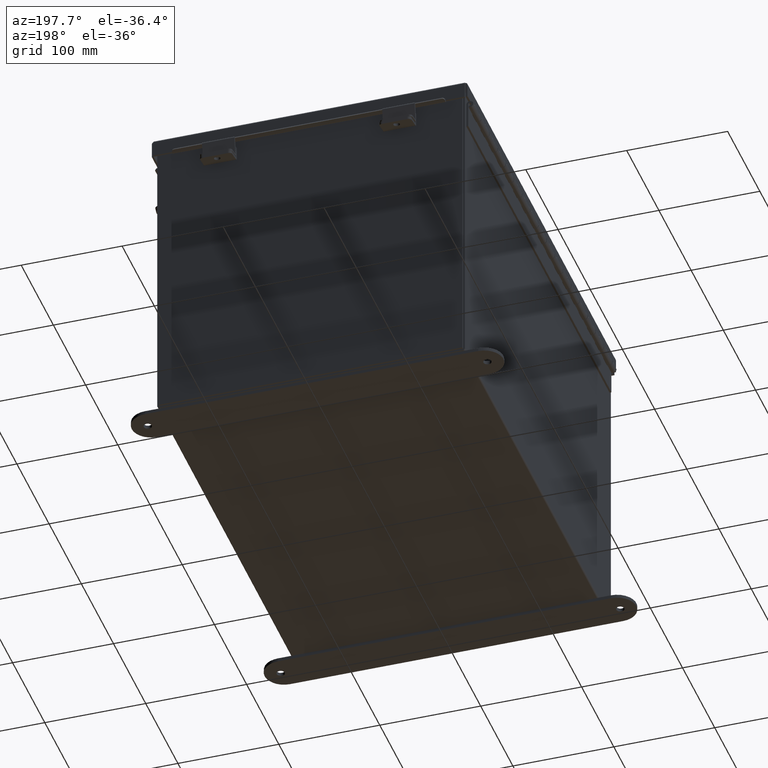
[diagram: clean part render]
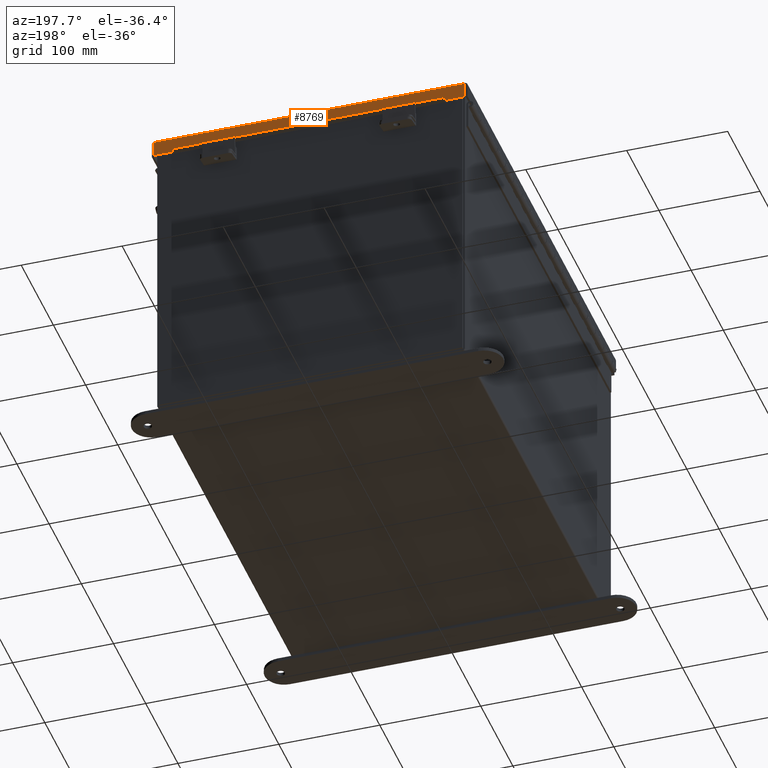
[diagram: same view with one face highlighted and labeled with its STEP entity id]
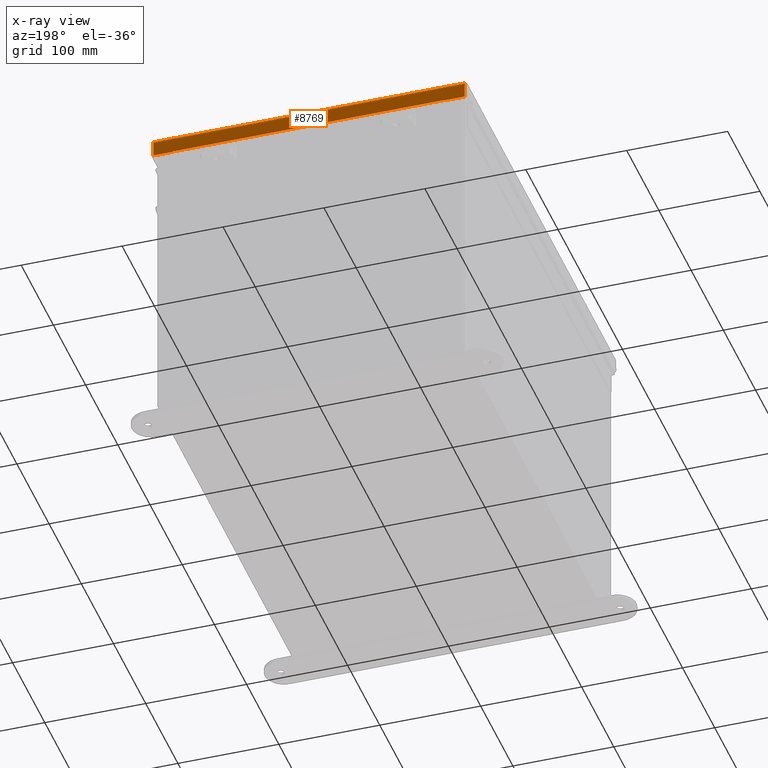
[diagram: x-ray of the same camera — body ghosted, the highlighted face saturated]
A machine part, auxiliary view. The second image highlights one B-rep face of the part: STEP entity #8769.
The next image is the same camera in x-ray: the body ghosted, the highlighted face saturated — about 0% of this face is hidden behind the body in this view.
In plain terms, the highlighted planar face has unit normal (-0, -1, -0).
Its self-contained STEP definition (entity closure, byte-faithful):
#236 = PLANE ( 'NONE',  #9175 ) ;
#522 = LINE ( 'NONE', #18403, #15509 ) ;
#984 = LINE ( 'NONE', #8507, #16458 ) ;
#1110 = ORIENTED_EDGE ( 'NONE', *, *, #16737, .F. ) ;
#1337 = ORIENTED_EDGE ( 'NONE', *, *, #6985, .F. ) ;
#1694 = VECTOR ( 'NONE', #11295, 39.37007874015748100 ) ;
#1746 = DIRECTION ( 'NONE',  ( 2.836592343583501600E-029, -1.000000000000000000, 3.569293475308533200E-015 ) ) ;
#2016 = EDGE_CURVE ( 'NONE', #3080, #7812, #15405, .T. ) ;
#2787 = CARTESIAN_POINT ( 'NONE',  ( -6.074478932188137400, 9.156249999999989300, 0.01300000000000010700 ) ) ;
#3080 = VERTEX_POINT ( 'NONE', #5813 ) ;
#3775 = CARTESIAN_POINT ( 'NONE',  ( 6.074478932188135600, 9.156249999999992900, 0.6123000000000005100 ) ) ;
#3823 = CARTESIAN_POINT ( 'NONE',  ( -5.324478932188133000, 9.156249999999992900, 0.5967115427318761000 ) ) ;
#3870 = EDGE_CURVE ( 'NONE', #11140, #10222, #19307, .T. ) ;
#3872 = VECTOR ( 'NONE', #14089, 39.37007874015748100 ) ;
#3983 = CARTESIAN_POINT ( 'NONE',  ( -5.324478932188133000, 9.156249999999994700, 0.5967115427318761000 ) ) ;
#4484 = EDGE_CURVE ( 'NONE', #5440, #15206, #6436, .T. ) ;
#5053 = EDGE_CURVE ( 'NONE', #10222, #9428, #984, .T. ) ;
#5269 = ORIENTED_EDGE ( 'NONE', *, *, #4484, .F. ) ;
#5293 = ORIENTED_EDGE ( 'NONE', *, *, #3870, .T. ) ;
#5300 = CARTESIAN_POINT ( 'NONE',  ( 5.324478932188133000, 9.156249999999994700, 0.5967115427318761000 ) ) ;
#5440 = VERTEX_POINT ( 'NONE', #17119 ) ;
#5697 = LINE ( 'NONE', #15716, #1694 ) ;
#5813 = CARTESIAN_POINT ( 'NONE',  ( 6.074478932188137400, 9.156249999999989300, 0.01300000000000010700 ) ) ;
#6093 = CARTESIAN_POINT ( 'NONE',  ( 5.324478932188132100, 9.156249999999992900, 0.5967115427318761000 ) ) ;
#6297 = CARTESIAN_POINT ( 'NONE',  ( -6.074478932188137400, 9.156249999999992900, 0.6122999999999982900 ) ) ;
#6436 = LINE ( 'NONE', #17198, #13925 ) ;
#6985 = EDGE_CURVE ( 'NONE', #9798, #9428, #14299, .T. ) ;
#7812 = VERTEX_POINT ( 'NONE', #3775 ) ;
#8265 = DIRECTION ( 'NONE',  ( -7.009925220120072300E-014, -7.009925220120072300E-014, -1.000000000000000000 ) ) ;
#8507 = CARTESIAN_POINT ( 'NONE',  ( -3.201384367575308500E-018, 9.156249999999992900, 0.6123000000000005100 ) ) ;
#8616 = FACE_OUTER_BOUND ( 'NONE', #10256, .T. ) ;
#8659 = ORIENTED_EDGE ( 'NONE', *, *, #5053, .T. ) ;
#8769 = ADVANCED_FACE ( 'NONE', ( #8616 ), #236, .F. ) ;
#9175 = AXIS2_PLACEMENT_3D ( 'NONE', #9247, #1746, #12263 ) ;
#9247 = CARTESIAN_POINT ( 'NONE',  ( 9.604153102725926100E-018, 9.156249999999989300, -3.278217592397115700E-014 ) ) ;
#9428 = VERTEX_POINT ( 'NONE', #17865 ) ;
#9481 = DIRECTION ( 'NONE',  ( 1.000000000000000000, -2.838860012234668700E-029, 5.546899479521434700E-018 ) ) ;
#9656 = CARTESIAN_POINT ( 'NONE',  ( -6.074478932188135600, 9.156249999999989300, -3.278217592397115700E-014 ) ) ;
#9798 = VERTEX_POINT ( 'NONE', #3823 ) ;
#9867 = VECTOR ( 'NONE', #11450, 39.37007874015748100 ) ;
#10002 = DIRECTION ( 'NONE',  ( 1.000000000000000000, -2.838860012234668700E-029, 5.546899479521434700E-018 ) ) ;
#10209 = DIRECTION ( 'NONE',  ( -0.0000000000000000000, 3.569293475308533200E-015, 1.000000000000000000 ) ) ;
#10222 = VERTEX_POINT ( 'NONE', #6297 ) ;
#10256 = EDGE_LOOP ( 'NONE', ( #5269, #16687, #11868, #14696, #5293, #8659, #1337, #1110 ) ) ;
#11140 = VERTEX_POINT ( 'NONE', #2787 ) ;
#11295 = DIRECTION ( 'NONE',  ( 1.000000000000000000, -2.841253050607691000E-029, -0.0000000000000000000 ) ) ;
#11412 = EDGE_CURVE ( 'NONE', #5440, #7812, #522, .T. ) ;
#11450 = DIRECTION ( 'NONE',  ( 0.0000000000000000000, 3.328006943901143600E-030, 1.000000000000000000 ) ) ;
#11544 = EDGE_CURVE ( 'NONE', #11140, #3080, #5697, .T. ) ;
#11868 = ORIENTED_EDGE ( 'NONE', *, *, #2016, .F. ) ;
#12263 = DIRECTION ( 'NONE',  ( 0.0000000000000000000, -3.569293475308533200E-015, -1.000000000000000000 ) ) ;
#13925 = VECTOR ( 'NONE', #8265, 39.37007874015748100 ) ;
#14058 = VECTOR ( 'NONE', #14270, 39.37007874015748100 ) ;
#14089 = DIRECTION ( 'NONE',  ( 0.0000000000000000000, 3.569293475308533200E-015, 1.000000000000000000 ) ) ;
#14270 = DIRECTION ( 'NONE',  ( -1.000000000000000000, 2.838787860278875300E-029, -0.0000000000000000000 ) ) ;
#14299 = LINE ( 'NONE', #3983, #9867 ) ;
#14696 = ORIENTED_EDGE ( 'NONE', *, *, #11544, .F. ) ;
#15206 = VERTEX_POINT ( 'NONE', #6093 ) ;
#15405 = LINE ( 'NONE', #19149, #16342 ) ;
#15509 = VECTOR ( 'NONE', #9481, 39.37007874015748100 ) ;
#15716 = CARTESIAN_POINT ( 'NONE',  ( 6.156249999999998200, 9.156249999999989300, 0.01300000000000010700 ) ) ;
#16342 = VECTOR ( 'NONE', #10209, 39.37007874015748100 ) ;
#16458 = VECTOR ( 'NONE', #10002, 39.37007874015748100 ) ;
#16687 = ORIENTED_EDGE ( 'NONE', *, *, #11412, .T. ) ;
#16737 = EDGE_CURVE ( 'NONE', #15206, #9798, #18012, .T. ) ;
#17119 = CARTESIAN_POINT ( 'NONE',  ( 5.324478932188133000, 9.156249999999992900, 0.6123000000000005100 ) ) ;
#17198 = CARTESIAN_POINT ( 'NONE',  ( 5.324478932188133000, 9.156249999999994700, 0.6122999999999982900 ) ) ;
#17865 = CARTESIAN_POINT ( 'NONE',  ( -5.324478932188132100, 9.156249999999992900, 0.6123000000000005100 ) ) ;
#18012 = LINE ( 'NONE', #5300, #14058 ) ;
#18403 = CARTESIAN_POINT ( 'NONE',  ( -3.201384367575308500E-018, 9.156249999999992900, 0.6123000000000005100 ) ) ;
#19149 = CARTESIAN_POINT ( 'NONE',  ( 6.074478932188135600, 9.156249999999989300, 0.0000000000000000000 ) ) ;
#19307 = LINE ( 'NONE', #9656, #3872 ) ;